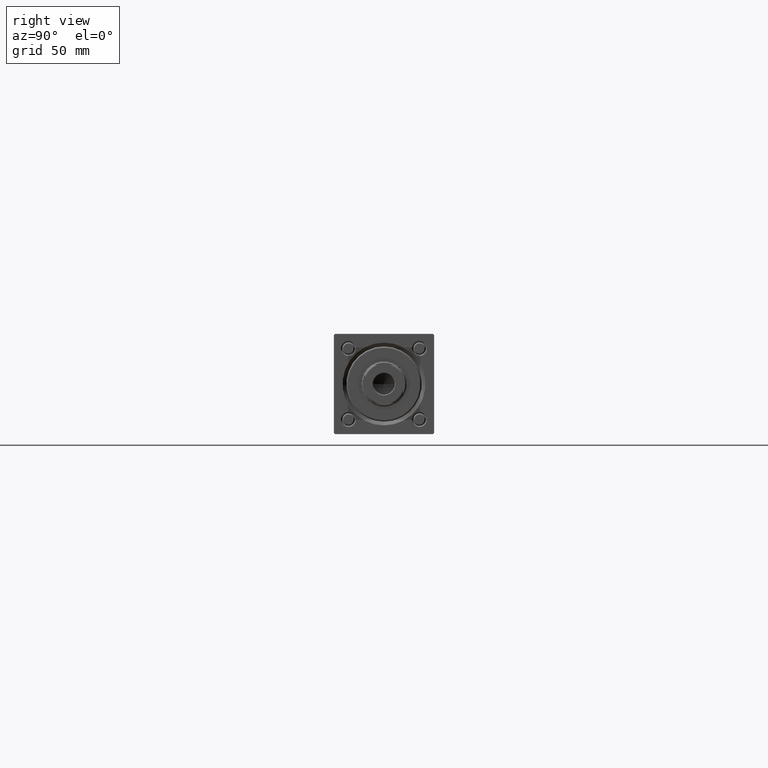
[diagram: clean part render]
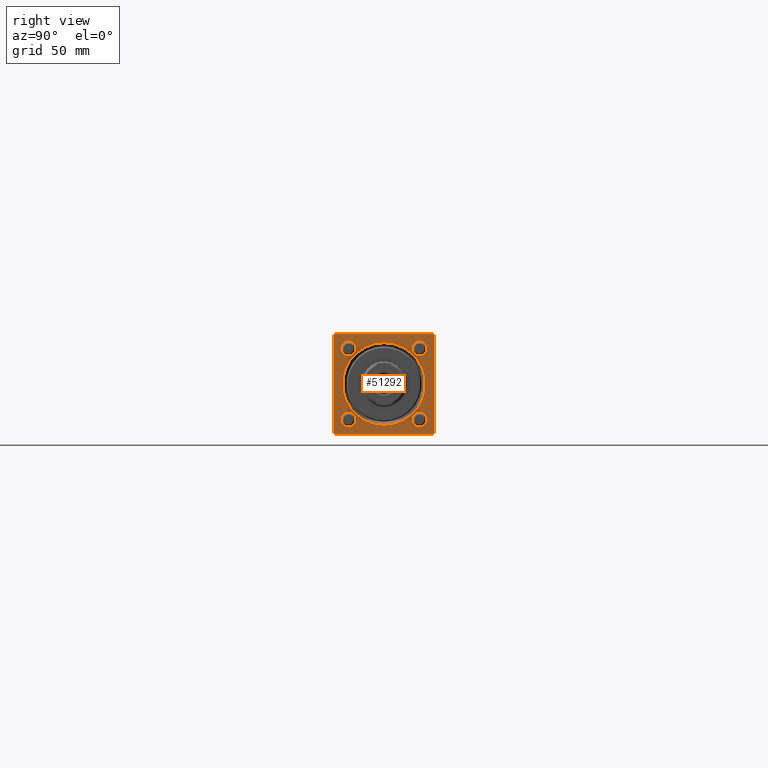
[diagram: same view with one face highlighted and labeled with its STEP entity id]
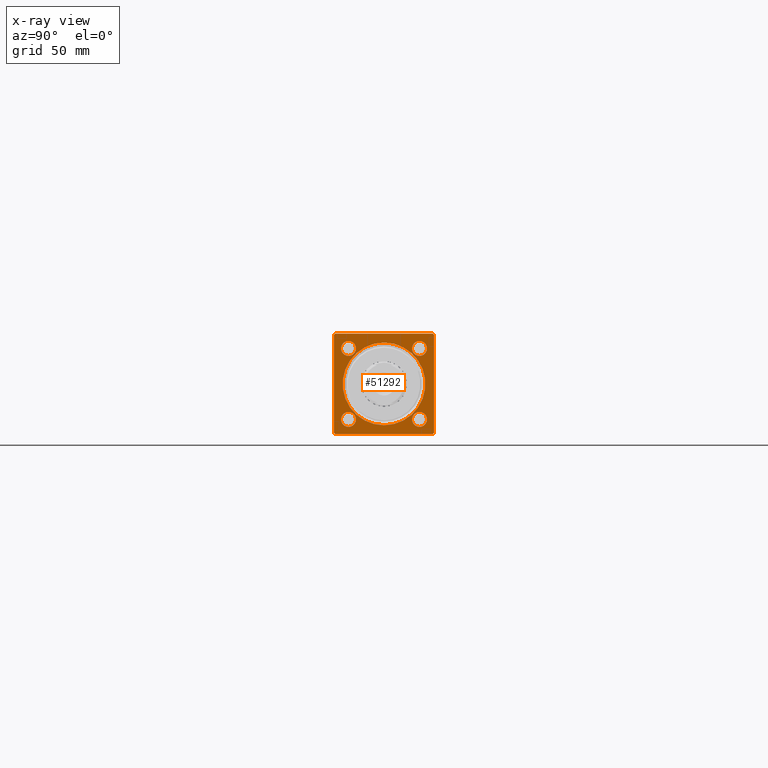
[diagram: x-ray of the same camera — body ghosted, the highlighted face saturated]
A machine part, right view. The second image highlights one B-rep face of the part: STEP entity #51292.
The next image is the same camera in x-ray: the body ghosted, the highlighted face saturated — about 0% of this face is hidden behind the body in this view.
In plain terms, the highlighted planar face has unit normal (-1, 0, 0).
Its self-contained STEP definition (entity closure, byte-faithful):
#176 = DIRECTION ( 'NONE',  ( -0.000000000000000000, -0.7071067811865671127, -0.7071067811865279218 ) ) ;
#482 = CIRCLE ( 'NONE', #35256, 2.999999999999917843 ) ;
#726 = ORIENTED_EDGE ( 'NONE', *, *, #40448, .T. ) ;
#1549 = VECTOR ( 'NONE', #41833, 1000.000000000000000 ) ;
#1608 = DIRECTION ( 'NONE',  ( -1.000000000000000000, -0.000000000000000000, -0.000000000000000000 ) ) ;
#1825 = DIRECTION ( 'NONE',  ( -1.000000000000000000, -0.000000000000000000, -0.000000000000000000 ) ) ;
#2022 = LINE ( 'NONE', #42115, #1549 ) ;
#2027 = CARTESIAN_POINT ( 'NONE',  ( 259.0000000000000000, -20.00000000000000355, 19.50000000000002487 ) ) ;
#2239 = VERTEX_POINT ( 'NONE', #42902 ) ;
#2277 = CARTESIAN_POINT ( 'NONE',  ( 259.0000000000000000, -19.50000000000000355, 19.99999999999999645 ) ) ;
#2330 = EDGE_CURVE ( 'NONE', #49075, #17788, #47766, .T. ) ;
#2573 = FACE_BOUND ( 'NONE', #11788, .T. ) ;
#2737 = VERTEX_POINT ( 'NONE', #46319 ) ;
#3235 = CIRCLE ( 'NONE', #27040, 2.999999999999976463 ) ;
#3435 = CIRCLE ( 'NONE', #49181, 16.50000000000001421 ) ;
#3902 = DIRECTION ( 'NONE',  ( -1.000000000000000000, -0.000000000000000000, -0.000000000000000000 ) ) ;
#4223 = AXIS2_PLACEMENT_3D ( 'NONE', #18896, #53854, #15446 ) ;
#4442 = ORIENTED_EDGE ( 'NONE', *, *, #43676, .T. ) ;
#4919 = AXIS2_PLACEMENT_3D ( 'NONE', #54269, #1825, #45671 ) ;
#5042 = VERTEX_POINT ( 'NONE', #17152 ) ;
#5065 = CARTESIAN_POINT ( 'NONE',  ( 259.0000000000000000, -14.15000000000000036, -14.15000000000000036 ) ) ;
#5239 = LINE ( 'NONE', #31596, #13512 ) ;
#5244 = ORIENTED_EDGE ( 'NONE', *, *, #55400, .T. ) ;
#5806 = CARTESIAN_POINT ( 'NONE',  ( 259.0000000000000000, 0.000000000000000000, 0.000000000000000000 ) ) ;
#6012 = VERTEX_POINT ( 'NONE', #20253 ) ;
#6371 = DIRECTION ( 'NONE',  ( 0.000000000000000000, 0.000000000000000000, 1.000000000000000000 ) ) ;
#6752 = VECTOR ( 'NONE', #16463, 1000.000000000000000 ) ;
#6832 = VERTEX_POINT ( 'NONE', #49249 ) ;
#6959 = CARTESIAN_POINT ( 'NONE',  ( 259.0000000000000000, -14.15000000000000036, 11.15000000000008207 ) ) ;
#6991 = EDGE_CURVE ( 'NONE', #5042, #24242, #54914, .T. ) ;
#7616 = ORIENTED_EDGE ( 'NONE', *, *, #50396, .T. ) ;
#10202 = CARTESIAN_POINT ( 'NONE',  ( 259.0000000000000000, 19.99999999999999645, -20.00000000000000000 ) ) ;
#10273 = ORIENTED_EDGE ( 'NONE', *, *, #30638, .F. ) ;
#10623 = PLANE ( 'NONE',  #51917 ) ;
#11011 = CARTESIAN_POINT ( 'NONE',  ( 259.0000000000000000, -20.00000000000000000, -19.49999999999999645 ) ) ;
#11227 = ORIENTED_EDGE ( 'NONE', *, *, #55529, .T. ) ;
#11284 = EDGE_LOOP ( 'NONE', ( #13827, #726 ) ) ;
#11788 = EDGE_LOOP ( 'NONE', ( #7616, #25393 ) ) ;
#11912 = ORIENTED_EDGE ( 'NONE', *, *, #37562, .T. ) ;
#13512 = VECTOR ( 'NONE', #40190, 1000.000000000000000 ) ;
#13587 = DIRECTION ( 'NONE',  ( -1.000000000000000000, -0.000000000000000000, -0.000000000000000000 ) ) ;
#13660 = CARTESIAN_POINT ( 'NONE',  ( 259.0000000000000000, -20.00000000000000355, 19.50000000000002487 ) ) ;
#13721 = CARTESIAN_POINT ( 'NONE',  ( 259.0000000000000000, 0.000000000000000000, -16.50000000000001421 ) ) ;
#13827 = ORIENTED_EDGE ( 'NONE', *, *, #6991, .T. ) ;
#14082 = LINE ( 'NONE', #14371, #15301 ) ;
#14106 = CARTESIAN_POINT ( 'NONE',  ( 259.0000000000000000, 19.49999999999999645, 20.00000000000000000 ) ) ;
#14371 = CARTESIAN_POINT ( 'NONE',  ( 259.0000000000000000, 19.99999999999999645, -19.50000000000000000 ) ) ;
#14559 = VECTOR ( 'NONE', #176, 1000.000000000000000 ) ;
#14729 = DIRECTION ( 'NONE',  ( 0.000000000000000000, 0.7071067811865279218, -0.7071067811865672237 ) ) ;
#15301 = VECTOR ( 'NONE', #52775, 1000.000000000000114 ) ;
#15446 = DIRECTION ( 'NONE',  ( 0.000000000000000000, 0.000000000000000000, 1.000000000000000000 ) ) ;
#16083 = VECTOR ( 'NONE', #44478, 1000.000000000000114 ) ;
#16463 = DIRECTION ( 'NONE',  ( 0.000000000000000000, -1.000000000000000000, 0.000000000000000000 ) ) ;
#16735 = AXIS2_PLACEMENT_3D ( 'NONE', #52047, #17929, #30261 ) ;
#16860 = VERTEX_POINT ( 'NONE', #32615 ) ;
#16922 = EDGE_LOOP ( 'NONE', ( #30834, #36327 ) ) ;
#17152 = CARTESIAN_POINT ( 'NONE',  ( 259.0000000000000000, 14.15000000000000036, -17.14999999999997726 ) ) ;
#17447 = VERTEX_POINT ( 'NONE', #6959 ) ;
#17745 = CARTESIAN_POINT ( 'NONE',  ( 259.0000000000000000, 14.15000000000000036, 11.15000000000002700 ) ) ;
#17788 = VERTEX_POINT ( 'NONE', #2027 ) ;
#17929 = DIRECTION ( 'NONE',  ( -1.000000000000000000, -0.000000000000000000, -0.000000000000000000 ) ) ;
#18541 = AXIS2_PLACEMENT_3D ( 'NONE', #56052, #3902, #21373 ) ;
#18896 = CARTESIAN_POINT ( 'NONE',  ( 259.0000000000000000, -14.15000000000000036, 14.15000000000000036 ) ) ;
#18932 = FACE_OUTER_BOUND ( 'NONE', #30805, .T. ) ;
#20253 = CARTESIAN_POINT ( 'NONE',  ( 259.0000000000000000, 19.49999999999999645, 20.00000000000000000 ) ) ;
#21283 = EDGE_LOOP ( 'NONE', ( #31944, #4442 ) ) ;
#21373 = DIRECTION ( 'NONE',  ( 0.000000000000000000, 0.000000000000000000, 1.000000000000000000 ) ) ;
#22195 = ORIENTED_EDGE ( 'NONE', *, *, #50274, .T. ) ;
#22739 = CARTESIAN_POINT ( 'NONE',  ( 259.0000000000000000, -19.50000000000002487, -20.00000000000000000 ) ) ;
#23518 = CARTESIAN_POINT ( 'NONE',  ( 259.0000000000000000, 14.15000000000000036, 17.14999999999997726 ) ) ;
#24242 = VERTEX_POINT ( 'NONE', #45252 ) ;
#24345 = FACE_BOUND ( 'NONE', #21283, .T. ) ;
#25211 = ORIENTED_EDGE ( 'NONE', *, *, #2330, .T. ) ;
#25393 = ORIENTED_EDGE ( 'NONE', *, *, #37567, .T. ) ;
#26183 = DIRECTION ( 'NONE',  ( 0.000000000000000000, 0.000000000000000000, 1.000000000000000000 ) ) ;
#26666 = VERTEX_POINT ( 'NONE', #23518 ) ;
#27001 = CIRCLE ( 'NONE', #42540, 2.999999999999973355 ) ;
#27040 = AXIS2_PLACEMENT_3D ( 'NONE', #5065, #1608, #35156 ) ;
#27719 = VERTEX_POINT ( 'NONE', #49544 ) ;
#28120 = EDGE_LOOP ( 'NONE', ( #39115, #11912 ) ) ;
#28243 = EDGE_CURVE ( 'NONE', #33703, #6012, #35589, .T. ) ;
#28914 = CIRCLE ( 'NONE', #4223, 2.999999999999917843 ) ;
#29349 = DIRECTION ( 'NONE',  ( 0.000000000000000000, 0.000000000000000000, 1.000000000000000000 ) ) ;
#29606 = LINE ( 'NONE', #33335, #43258 ) ;
#29621 = CARTESIAN_POINT ( 'NONE',  ( 259.0000000000000000, 2.020667218593134678E-15, 16.50000000000001421 ) ) ;
#29665 = VECTOR ( 'NONE', #14729, 1000.000000000000000 ) ;
#30261 = DIRECTION ( 'NONE',  ( 0.000000000000000000, 0.000000000000000000, 1.000000000000000000 ) ) ;
#30480 = DIRECTION ( 'NONE',  ( -1.000000000000000000, -0.000000000000000000, -0.000000000000000000 ) ) ;
#30638 = EDGE_CURVE ( 'NONE', #33703, #6832, #29606, .T. ) ;
#30805 = EDGE_LOOP ( 'NONE', ( #22195, #47136, #39038, #5244, #10273, #52740, #11227, #25211 ) ) ;
#30834 = ORIENTED_EDGE ( 'NONE', *, *, #44350, .T. ) ;
#31371 = CARTESIAN_POINT ( 'NONE',  ( 259.0000000000000000, -14.15000000000000036, 17.14999999999992397 ) ) ;
#31596 = CARTESIAN_POINT ( 'NONE',  ( 259.0000000000000000, -20.00000000000000355, 19.99999999999999645 ) ) ;
#31944 = ORIENTED_EDGE ( 'NONE', *, *, #35980, .T. ) ;
#32615 = CARTESIAN_POINT ( 'NONE',  ( 259.0000000000000000, -14.15000000000000036, -17.14999999999997726 ) ) ;
#32674 = FACE_BOUND ( 'NONE', #16922, .T. ) ;
#32887 = DIRECTION ( 'NONE',  ( -1.000000000000000000, -0.000000000000000000, -0.000000000000000000 ) ) ;
#33335 = CARTESIAN_POINT ( 'NONE',  ( 259.0000000000000000, 19.99999999999999645, 20.00000000000000000 ) ) ;
#33703 = VERTEX_POINT ( 'NONE', #49620 ) ;
#35156 = DIRECTION ( 'NONE',  ( 0.000000000000000000, 0.000000000000000000, 1.000000000000000000 ) ) ;
#35256 = AXIS2_PLACEMENT_3D ( 'NONE', #50854, #37657, #29349 ) ;
#35589 = LINE ( 'NONE', #14106, #16083 ) ;
#35980 = EDGE_CURVE ( 'NONE', #39922, #26666, #45210, .T. ) ;
#36327 = ORIENTED_EDGE ( 'NONE', *, *, #46677, .T. ) ;
#37562 = EDGE_CURVE ( 'NONE', #27719, #16860, #41428, .T. ) ;
#37567 = EDGE_CURVE ( 'NONE', #42665, #44255, #55144, .T. ) ;
#37625 = DIRECTION ( 'NONE',  ( 0.000000000000000000, 0.000000000000000000, -1.000000000000000000 ) ) ;
#37657 = DIRECTION ( 'NONE',  ( -1.000000000000000000, -0.000000000000000000, -0.000000000000000000 ) ) ;
#39038 = ORIENTED_EDGE ( 'NONE', *, *, #40304, .F. ) ;
#39070 = CARTESIAN_POINT ( 'NONE',  ( 259.0000000000000000, 14.15000000000000036, 14.15000000000000036 ) ) ;
#39084 = DIRECTION ( 'NONE',  ( 0.000000000000000000, 0.000000000000000000, 1.000000000000000000 ) ) ;
#39115 = ORIENTED_EDGE ( 'NONE', *, *, #44886, .T. ) ;
#39922 = VERTEX_POINT ( 'NONE', #17745 ) ;
#40190 = DIRECTION ( 'NONE',  ( 0.000000000000000000, 8.673617379884036705E-17, -1.000000000000000000 ) ) ;
#40267 = AXIS2_PLACEMENT_3D ( 'NONE', #54391, #32887, #49810 ) ;
#40304 = EDGE_CURVE ( 'NONE', #2737, #2239, #49457, .T. ) ;
#40448 = EDGE_CURVE ( 'NONE', #24242, #5042, #52541, .T. ) ;
#40982 = DIRECTION ( 'NONE',  ( -0.000000000000000000, 0.000000000000000000, 1.000000000000000000 ) ) ;
#41072 = LINE ( 'NONE', #22739, #29665 ) ;
#41316 = EDGE_CURVE ( 'NONE', #47948, #2239, #41072, .T. ) ;
#41428 = CIRCLE ( 'NONE', #18541, 2.999999999999976463 ) ;
#41833 = DIRECTION ( 'NONE',  ( 0.000000000000000000, -1.000000000000000000, -8.673617379884035472E-17 ) ) ;
#42115 = CARTESIAN_POINT ( 'NONE',  ( 259.0000000000000000, 19.99999999999999645, 20.00000000000000000 ) ) ;
#42540 = AXIS2_PLACEMENT_3D ( 'NONE', #39070, #30480, #26183 ) ;
#42665 = VERTEX_POINT ( 'NONE', #29621 ) ;
#42902 = CARTESIAN_POINT ( 'NONE',  ( 259.0000000000000000, -19.50000000000002487, -20.00000000000000000 ) ) ;
#43258 = VECTOR ( 'NONE', #37625, 1000.000000000000000 ) ;
#43676 = EDGE_CURVE ( 'NONE', #26666, #39922, #27001, .T. ) ;
#44255 = VERTEX_POINT ( 'NONE', #13721 ) ;
#44350 = EDGE_CURVE ( 'NONE', #17447, #48511, #482, .T. ) ;
#44478 = DIRECTION ( 'NONE',  ( 0.000000000000000000, -0.7071067811865474617, 0.7071067811865474617 ) ) ;
#44886 = EDGE_CURVE ( 'NONE', #16860, #27719, #3235, .T. ) ;
#45003 = FACE_BOUND ( 'NONE', #11284, .T. ) ;
#45206 = AXIS2_PLACEMENT_3D ( 'NONE', #56297, #13587, #39084 ) ;
#45210 = CIRCLE ( 'NONE', #4919, 2.999999999999973355 ) ;
#45252 = CARTESIAN_POINT ( 'NONE',  ( 259.0000000000000000, 14.15000000000000036, -11.15000000000002522 ) ) ;
#45633 = DIRECTION ( 'NONE',  ( -1.000000000000000000, -0.000000000000000000, -0.000000000000000000 ) ) ;
#45671 = DIRECTION ( 'NONE',  ( 0.000000000000000000, 0.000000000000000000, 1.000000000000000000 ) ) ;
#46319 = CARTESIAN_POINT ( 'NONE',  ( 259.0000000000000000, 19.49999999999999645, -20.00000000000000000 ) ) ;
#46677 = EDGE_CURVE ( 'NONE', #48511, #17447, #28914, .T. ) ;
#47136 = ORIENTED_EDGE ( 'NONE', *, *, #41316, .T. ) ;
#47766 = LINE ( 'NONE', #13660, #14559 ) ;
#47948 = VERTEX_POINT ( 'NONE', #11011 ) ;
#48511 = VERTEX_POINT ( 'NONE', #31371 ) ;
#49075 = VERTEX_POINT ( 'NONE', #2277 ) ;
#49181 = AXIS2_PLACEMENT_3D ( 'NONE', #5806, #45633, #6371 ) ;
#49249 = CARTESIAN_POINT ( 'NONE',  ( 259.0000000000000000, 19.99999999999999645, -19.50000000000000000 ) ) ;
#49457 = LINE ( 'NONE', #10202, #6752 ) ;
#49544 = CARTESIAN_POINT ( 'NONE',  ( 259.0000000000000000, -14.15000000000000036, -11.15000000000002522 ) ) ;
#49620 = CARTESIAN_POINT ( 'NONE',  ( 259.0000000000000000, 19.99999999999999645, 19.50000000000000000 ) ) ;
#49810 = DIRECTION ( 'NONE',  ( 0.000000000000000000, 0.000000000000000000, 1.000000000000000000 ) ) ;
#50160 = DIRECTION ( 'NONE',  ( -1.000000000000000000, 0.000000000000000000, -0.000000000000000000 ) ) ;
#50274 = EDGE_CURVE ( 'NONE', #17788, #47948, #5239, .T. ) ;
#50396 = EDGE_CURVE ( 'NONE', #44255, #42665, #3435, .T. ) ;
#50854 = CARTESIAN_POINT ( 'NONE',  ( 259.0000000000000000, -14.15000000000000036, 14.15000000000000036 ) ) ;
#51292 = ADVANCED_FACE ( 'NONE', ( #54455, #45003, #24345, #32674, #2573, #18932 ), #10623, .F. ) ;
#51917 = AXIS2_PLACEMENT_3D ( 'NONE', #53889, #50160, #40982 ) ;
#52047 = CARTESIAN_POINT ( 'NONE',  ( 259.0000000000000000, 0.000000000000000000, 0.000000000000000000 ) ) ;
#52541 = CIRCLE ( 'NONE', #45206, 2.999999999999976463 ) ;
#52740 = ORIENTED_EDGE ( 'NONE', *, *, #28243, .T. ) ;
#52775 = DIRECTION ( 'NONE',  ( -0.000000000000000000, 0.7071067811865474617, 0.7071067811865474617 ) ) ;
#53854 = DIRECTION ( 'NONE',  ( -1.000000000000000000, -0.000000000000000000, -0.000000000000000000 ) ) ;
#53889 = CARTESIAN_POINT ( 'NONE',  ( 259.0000000000000000, 0.000000000000000000, 0.000000000000000000 ) ) ;
#54269 = CARTESIAN_POINT ( 'NONE',  ( 259.0000000000000000, 14.15000000000000036, 14.15000000000000036 ) ) ;
#54391 = CARTESIAN_POINT ( 'NONE',  ( 259.0000000000000000, 14.15000000000000036, -14.15000000000000036 ) ) ;
#54455 = FACE_BOUND ( 'NONE', #28120, .T. ) ;
#54914 = CIRCLE ( 'NONE', #40267, 2.999999999999976463 ) ;
#55144 = CIRCLE ( 'NONE', #16735, 16.50000000000001421 ) ;
#55400 = EDGE_CURVE ( 'NONE', #2737, #6832, #14082, .T. ) ;
#55529 = EDGE_CURVE ( 'NONE', #6012, #49075, #2022, .T. ) ;
#56052 = CARTESIAN_POINT ( 'NONE',  ( 259.0000000000000000, -14.15000000000000036, -14.15000000000000036 ) ) ;
#56297 = CARTESIAN_POINT ( 'NONE',  ( 259.0000000000000000, 14.15000000000000036, -14.15000000000000036 ) ) ;